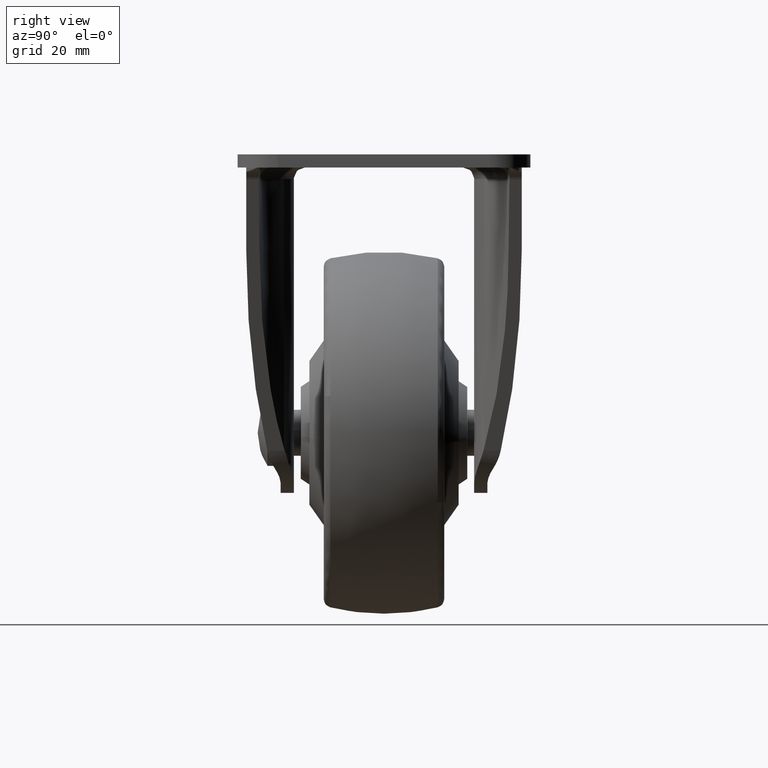
[diagram: clean part render]
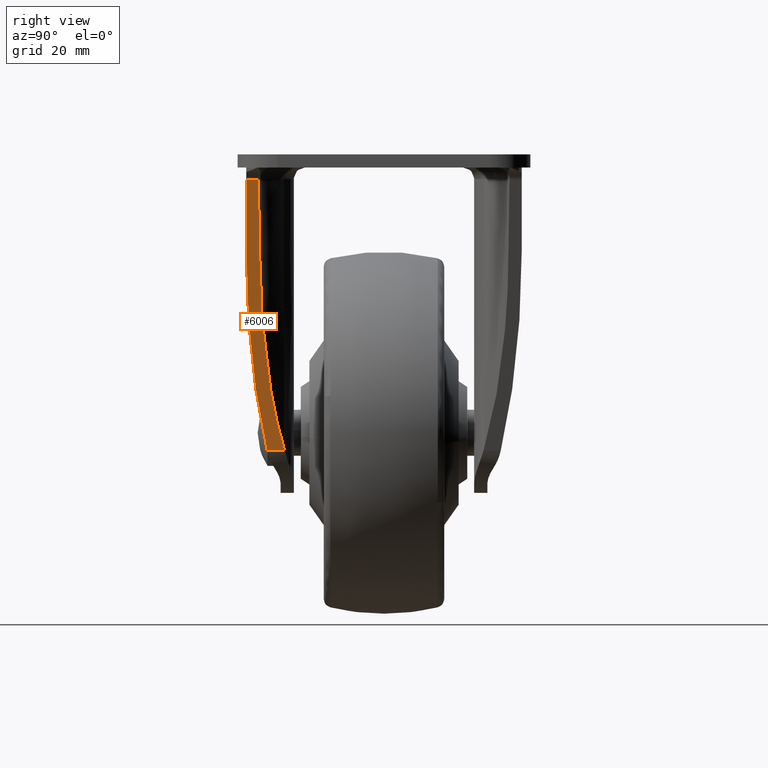
[diagram: same view with one face highlighted and labeled with its STEP entity id]
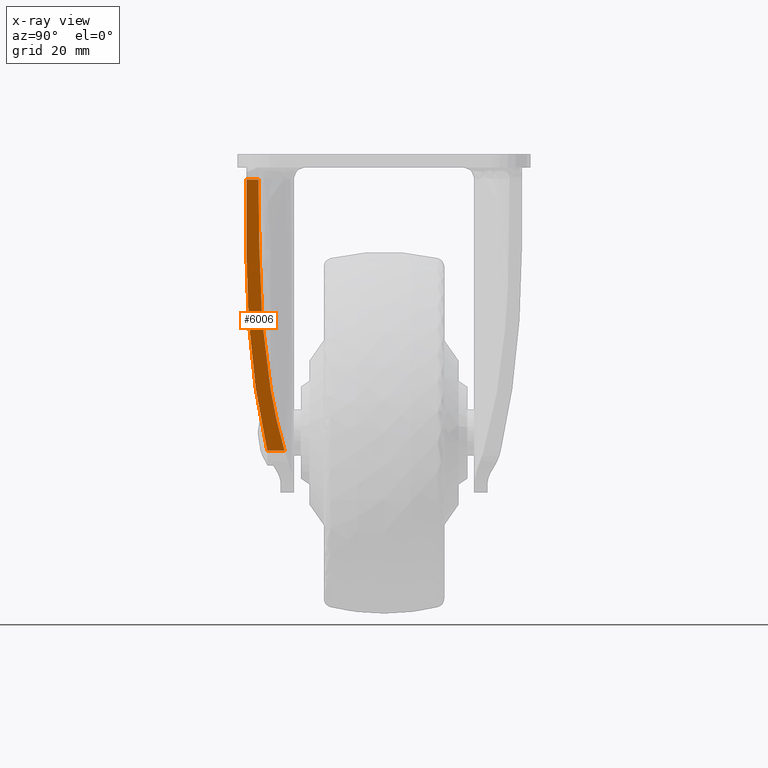
[diagram: x-ray of the same camera — body ghosted, the highlighted face saturated]
A machine part, right view. The second image highlights one B-rep face of the part: STEP entity #6006.
The next image is the same camera in x-ray: the body ghosted, the highlighted face saturated — about 0% of this face is hidden behind the body in this view.
In plain terms, the highlighted face is a freeform B-spline surface patch.
Its self-contained STEP definition (entity closure, byte-faithful):
#5283=CARTESIAN_POINT('',(24.634322907703300,-24.0,-4.413120055099420));
#5284=VERTEX_POINT('',#5283);
#5300=CARTESIAN_POINT('',(24.634322907703250,-21.860776120116650,-4.413120055099860));
#5301=VERTEX_POINT('',#5300);
#5302=CARTESIAN_POINT('',(24.634322907703250,-21.860776120116650,-4.413120055099860));
#5303=CARTESIAN_POINT('',(24.634322907703300,-24.0,-4.413120055099420));
#5304=QUASI_UNIFORM_CURVE('',1,(#5302,#5303),.UNSPECIFIED.,.F.,.U.);
#5305=EDGE_CURVE('',#5301,#5284,#5304,.T.);
#5934=CARTESIAN_POINT('',(25.363774492988512,-24.333827296445310,-2.055931697316906));
#5935=CARTESIAN_POINT('',(9.301235023014742,-24.333827296445310,-53.961269623542726));
#5936=CARTESIAN_POINT('',(25.363774492988512,-16.982943106905001,-2.055931697316906));
#5937=CARTESIAN_POINT('',(9.301235023014742,-16.982943106905001,-53.961269623542726));
#5938=B_SPLINE_SURFACE_WITH_KNOTS('',1,1,((#5934,#5936),(#5935,#5937)),.UNSPECIFIED.,.F.,.F.,.U.,(2,2),(2,2),(0.0,54.333868622252197),(0.0,7.350884189540309),.UNSPECIFIED.);
#5939=CARTESIAN_POINT('',(20.916407000000000,-21.699999999999999,-16.427389774490901));
#5940=VERTEX_POINT('',#5939);
#5941=CARTESIAN_POINT('',(24.634322907703250,-21.860776120116650,-4.413120055099860));
#5942=CARTESIAN_POINT('',(20.916407000000000,-21.699999999999999,-16.427389774490901));
#5943=QUASI_UNIFORM_CURVE('',1,(#5941,#5942),.UNSPECIFIED.,.F.,.U.);
#5944=EDGE_CURVE('',#5301,#5940,#5943,.T.);
#5945=ORIENTED_EDGE('',*,*,#5944,.F.);
#5946=ORIENTED_EDGE('',*,*,#5305,.T.);
#5947=CARTESIAN_POINT('',(20.916406999999950,-24.0,-16.427389774490550));
#5948=VERTEX_POINT('',#5947);
#5949=CARTESIAN_POINT('',(20.916406999999950,-24.0,-16.427389774490550));
#5950=CARTESIAN_POINT('',(24.634322907703300,-24.0,-4.413120055099420));
#5951=QUASI_UNIFORM_CURVE('',1,(#5949,#5950),.UNSPECIFIED.,.F.,.U.);
#5952=EDGE_CURVE('',#5948,#5284,#5951,.T.);
#5953=ORIENTED_EDGE('',*,*,#5952,.F.);
#5954=CARTESIAN_POINT('',(10.030686999999901,-20.335309556532199,-51.604080000000003));
#5955=VERTEX_POINT('',#5954);
#5956=CARTESIAN_POINT('',(20.916406999999950,-24.0,-16.427389774490550));
#5957=CARTESIAN_POINT('',(14.856685825615461,-23.999999999999996,-36.009092648005904));
#5958=CARTESIAN_POINT('',(10.030686999999901,-20.335309556532199,-51.604080000000003));
#5966=(BOUNDED_CURVE()B_SPLINE_CURVE(2,(#5956,#5957,#5958),.UNSPECIFIED.,.F.,.U.)CURVE()GEOMETRIC_REPRESENTATION_ITEM()QUASI_UNIFORM_CURVE()RATIONAL_B_SPLINE_CURVE((1.0,0.947735745467594,1.0))REPRESENTATION_ITEM(''));
#5967=EDGE_CURVE('',#5948,#5955,#5966,.T.);
#5968=ORIENTED_EDGE('',*,*,#5967,.T.);
#5969=CARTESIAN_POINT('',(10.030686999999901,-17.316770104586649,-51.604080000000003));
#5970=VERTEX_POINT('',#5969);
#5971=CARTESIAN_POINT('',(10.030686999999901,-20.335309556532199,-51.604080000000003));
#5972=CARTESIAN_POINT('',(10.030686999999901,-17.316770104586649,-51.604080000000003));
#5973=QUASI_UNIFORM_CURVE('',1,(#5971,#5972),.UNSPECIFIED.,.F.,.U.);
#5974=EDGE_CURVE('',#5955,#5970,#5973,.T.);
#5975=ORIENTED_EDGE('',*,*,#5974,.T.);
#5976=CARTESIAN_POINT('',(10.140734260395540,-17.418181860915752,-51.248467473763299));
#5977=VERTEX_POINT('',#5976);
#5978=CARTESIAN_POINT('',(10.030686999999901,-17.316770104586649,-51.604080000000003));
#5979=CARTESIAN_POINT('',(10.086312893376260,-17.366822019050588,-51.424327551855349));
#5980=CARTESIAN_POINT('',(10.140734260395540,-17.418181860915752,-51.248467473763299));
#5988=(BOUNDED_CURVE()B_SPLINE_CURVE(2,(#5978,#5979,#5980),.UNSPECIFIED.,.F.,.U.)CURVE()GEOMETRIC_REPRESENTATION_ITEM()QUASI_UNIFORM_CURVE()RATIONAL_B_SPLINE_CURVE((1.0,0.999929467854242,1.0))REPRESENTATION_ITEM(''));
#5989=EDGE_CURVE('',#5970,#5977,#5988,.T.);
#5990=ORIENTED_EDGE('',*,*,#5989,.T.);
#5991=CARTESIAN_POINT('',(20.916407000000000,-21.699999999999999,-16.427389774490891));
#5992=CARTESIAN_POINT('',(14.677859634270524,-21.699999999999996,-36.586961042301361));
#5993=CARTESIAN_POINT('',(10.140734260395600,-17.418181860915801,-51.248467473763313));
#6001=(BOUNDED_CURVE()B_SPLINE_CURVE(2,(#5991,#5992,#5993),.UNSPECIFIED.,.F.,.U.)CURVE()GEOMETRIC_REPRESENTATION_ITEM()QUASI_UNIFORM_CURVE()RATIONAL_B_SPLINE_CURVE((1.0,0.929320378016817,1.0))REPRESENTATION_ITEM(''));
#6002=EDGE_CURVE('',#5940,#5977,#6001,.T.);
#6003=ORIENTED_EDGE('',*,*,#6002,.F.);
#6004=EDGE_LOOP('',(#5945,#5946,#5953,#5968,#5975,#5990,#6003));
#6005=FACE_OUTER_BOUND('',#6004,.T.);
#6006=ADVANCED_FACE('',(#6005),#5938,.T.);